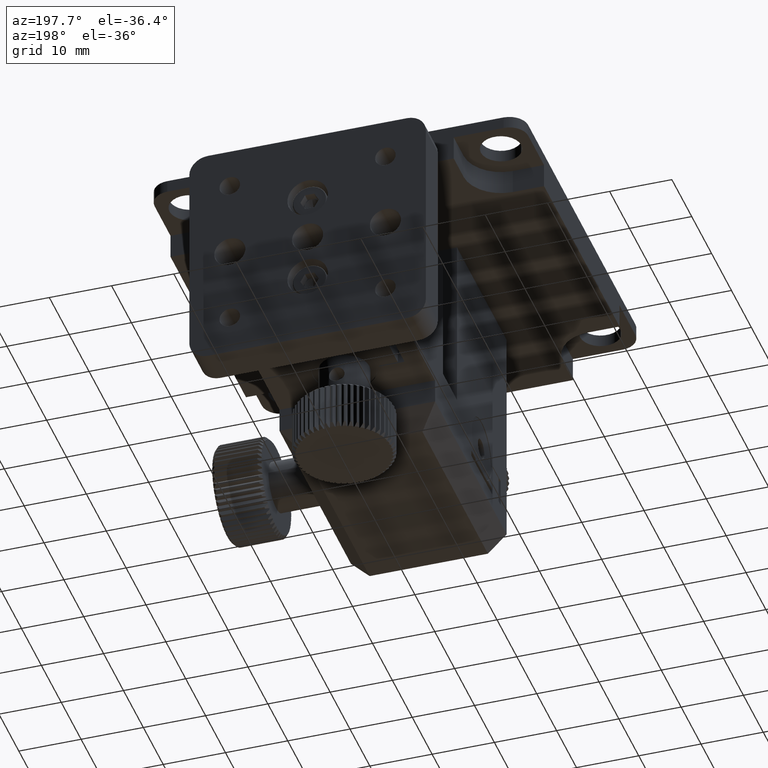
[diagram: clean part render]
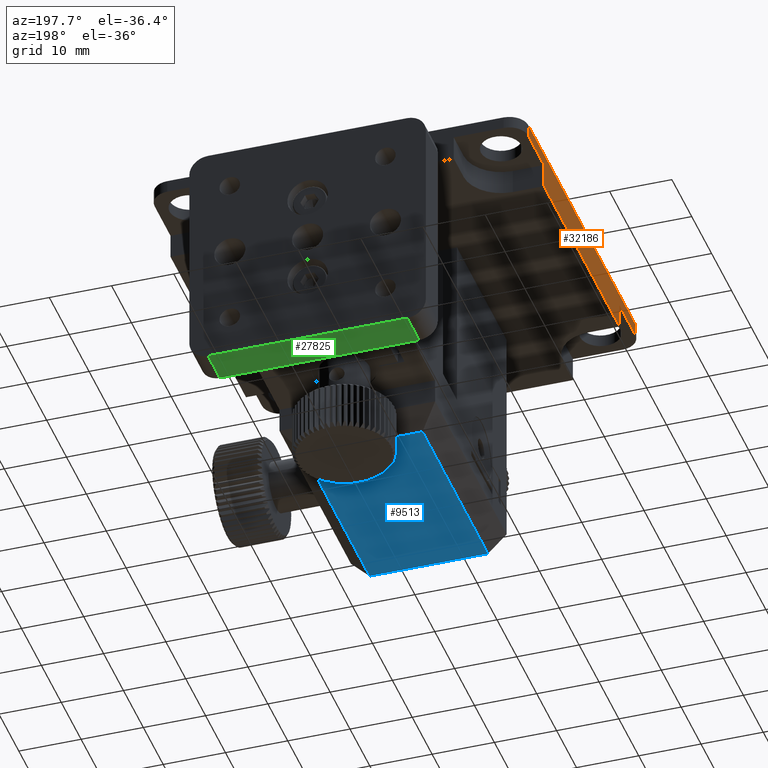
[diagram: same view with three faces highlighted in distinct colors, each labeled with its STEP entity id]
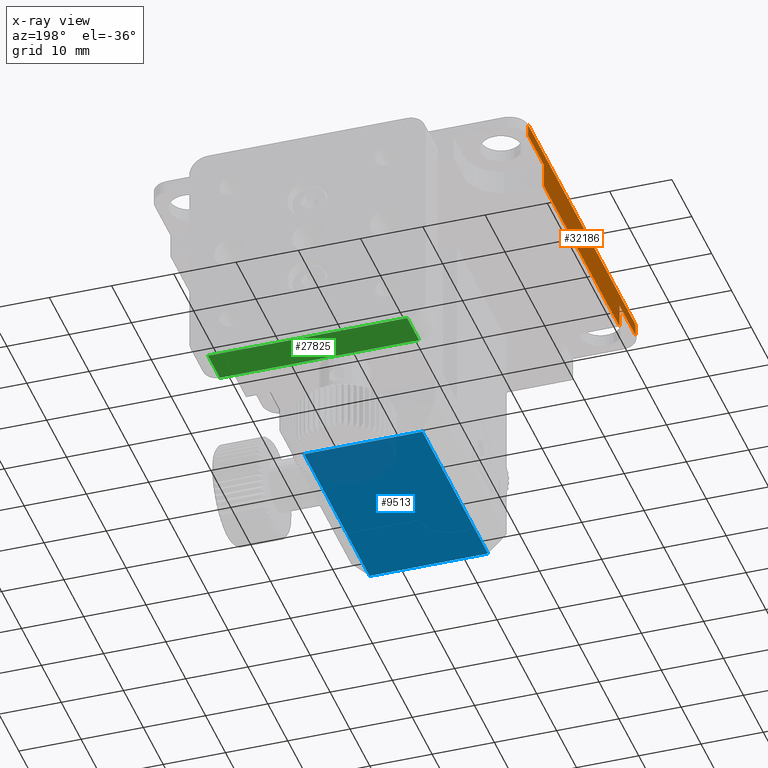
[diagram: x-ray of the same camera — body ghosted, the three highlighted faces saturated]
A machine part, auxiliary view with three faces highlighted in distinct colors.
The next image is the same camera in x-ray (body ghosted, the three faces saturated) — at least one of them is partly hidden behind the body in this view.
Their STEP definitions:

[orange] entity #32186 — the highlighted planar face has unit normal (1, 0, -0).
#379 = CARTESIAN_POINT ( 'NONE',  ( -29.99999999999999300, -26.99999999999999600, 6.000000000000000000 ) ) ;
#445 = ORIENTED_EDGE ( 'NONE', *, *, #9454, .T. ) ;
#807 = EDGE_CURVE ( 'NONE', #19068, #37769, #27990, .T. ) ;
#1831 = CARTESIAN_POINT ( 'NONE',  ( -29.99999999999999300, -26.99999999999999600, 6.000000000000000000 ) ) ;
#3174 = DIRECTION ( 'NONE',  ( 0.0000000000000000000, 0.0000000000000000000, 1.000000000000000000 ) ) ;
#3312 = CARTESIAN_POINT ( 'NONE',  ( -29.99999999999999300, -26.99999999999999600, 4.000000000000000000 ) ) ;
#3771 = LINE ( 'NONE', #38466, #34706 ) ;
#4132 = DIRECTION ( 'NONE',  ( 1.000000000000000000, 0.0000000000000000000, -0.0000000000000000000 ) ) ;
#4554 = DIRECTION ( 'NONE',  ( 0.0000000000000000000, 0.0000000000000000000, -1.000000000000000000 ) ) ;
#4748 = DIRECTION ( 'NONE',  ( 0.0000000000000000000, -1.000000000000000000, 0.0000000000000000000 ) ) ;
#5592 = VERTEX_POINT ( 'NONE', #1831 ) ;
#6147 = LINE ( 'NONE', #11073, #37062 ) ;
#6796 = VERTEX_POINT ( 'NONE', #11306 ) ;
#7320 = ORIENTED_EDGE ( 'NONE', *, *, #29095, .F. ) ;
#9332 = DIRECTION ( 'NONE',  ( 0.0000000000000000000, 0.0000000000000000000, -1.000000000000000000 ) ) ;
#9454 = EDGE_CURVE ( 'NONE', #6796, #32316, #6147, .T. ) ;
#10179 = DIRECTION ( 'NONE',  ( -0.0000000000000000000, 0.0000000000000000000, -1.000000000000000000 ) ) ;
#11073 = CARTESIAN_POINT ( 'NONE',  ( -29.99999999999999300, -19.00000000000000400, 6.000000000000000000 ) ) ;
#11306 = CARTESIAN_POINT ( 'NONE',  ( -29.99999999999999300, -19.00000000000000400, 0.0000000000000000000 ) ) ;
#11623 = VECTOR ( 'NONE', #9332, 1000.000000000000000 ) ;
#13367 = VECTOR ( 'NONE', #36093, 1000.000000000000000 ) ;
#13889 = CARTESIAN_POINT ( 'NONE',  ( -29.99999999999999300, 19.00000000000000400, 4.000000000000000000 ) ) ;
#14426 = CARTESIAN_POINT ( 'NONE',  ( -29.99999999999999300, 30.00000000000000000, 6.000000000000000000 ) ) ;
#14692 = DIRECTION ( 'NONE',  ( 0.0000000000000000000, -1.000000000000000000, 0.0000000000000000000 ) ) ;
#16151 = PLANE ( 'NONE',  #17881 ) ;
#17705 = CARTESIAN_POINT ( 'NONE',  ( -29.99999999999999300, 27.00000000000000000, 6.000000000000000000 ) ) ;
#17881 = AXIS2_PLACEMENT_3D ( 'NONE', #36978, #4132, #10179 ) ;
#18445 = FACE_OUTER_BOUND ( 'NONE', #34953, .T. ) ;
#18528 = LINE ( 'NONE', #379, #13367 ) ;
#19068 = VERTEX_POINT ( 'NONE', #13889 ) ;
#19098 = VECTOR ( 'NONE', #14692, 1000.000000000000000 ) ;
#21237 = VERTEX_POINT ( 'NONE', #3312 ) ;
#21597 = VECTOR ( 'NONE', #4748, 1000.000000000000000 ) ;
#22133 = VECTOR ( 'NONE', #27652, 1000.000000000000000 ) ;
#23153 = CARTESIAN_POINT ( 'NONE',  ( -29.99999999999999300, 30.00000000000000000, 4.000000000000000000 ) ) ;
#24010 = ORIENTED_EDGE ( 'NONE', *, *, #807, .T. ) ;
#24038 = ORIENTED_EDGE ( 'NONE', *, *, #36609, .T. ) ;
#24839 = EDGE_CURVE ( 'NONE', #36696, #32388, #28013, .T. ) ;
#25405 = CARTESIAN_POINT ( 'NONE',  ( -29.99999999999999300, -19.00000000000000400, 4.000000000000000000 ) ) ;
#26229 = DIRECTION ( 'NONE',  ( 0.0000000000000000000, -1.000000000000000000, 0.0000000000000000000 ) ) ;
#26504 = ORIENTED_EDGE ( 'NONE', *, *, #37201, .T. ) ;
#27052 = CARTESIAN_POINT ( 'NONE',  ( -29.99999999999999300, 27.00000000000000000, 6.000000000000000000 ) ) ;
#27652 = DIRECTION ( 'NONE',  ( 0.0000000000000000000, -1.000000000000000000, 0.0000000000000000000 ) ) ;
#27990 = LINE ( 'NONE', #31299, #36848 ) ;
#28013 = LINE ( 'NONE', #27052, #11623 ) ;
#29095 = EDGE_CURVE ( 'NONE', #36696, #5592, #38686, .T. ) ;
#30261 = EDGE_CURVE ( 'NONE', #21237, #5592, #18528, .T. ) ;
#31299 = CARTESIAN_POINT ( 'NONE',  ( -29.99999999999999300, 19.00000000000000400, 6.000000000000000000 ) ) ;
#32186 = ADVANCED_FACE ( 'NONE', ( #18445 ), #16151, .F. ) ;
#32316 = VERTEX_POINT ( 'NONE', #25405 ) ;
#32388 = VERTEX_POINT ( 'NONE', #32423 ) ;
#32423 = CARTESIAN_POINT ( 'NONE',  ( -29.99999999999999300, 27.00000000000000000, 4.000000000000000000 ) ) ;
#34303 = ORIENTED_EDGE ( 'NONE', *, *, #30261, .T. ) ;
#34706 = VECTOR ( 'NONE', #26229, 1000.000000000000000 ) ;
#34806 = ORIENTED_EDGE ( 'NONE', *, *, #24839, .T. ) ;
#34953 = EDGE_LOOP ( 'NONE', ( #35219, #445, #26504, #34303, #7320, #34806, #24038, #24010 ) ) ;
#35219 = ORIENTED_EDGE ( 'NONE', *, *, #36332, .T. ) ;
#35538 = LINE ( 'NONE', #23153, #21597 ) ;
#36093 = DIRECTION ( 'NONE',  ( -0.0000000000000000000, -0.0000000000000000000, 1.000000000000000000 ) ) ;
#36332 = EDGE_CURVE ( 'NONE', #37769, #6796, #3771, .T. ) ;
#36481 = CARTESIAN_POINT ( 'NONE',  ( -29.99999999999999300, 30.00000000000000000, 4.000000000000000000 ) ) ;
#36609 = EDGE_CURVE ( 'NONE', #32388, #19068, #37933, .T. ) ;
#36696 = VERTEX_POINT ( 'NONE', #17705 ) ;
#36848 = VECTOR ( 'NONE', #4554, 1000.000000000000000 ) ;
#36978 = CARTESIAN_POINT ( 'NONE',  ( -29.99999999999999300, 30.00000000000000000, 6.000000000000000000 ) ) ;
#37062 = VECTOR ( 'NONE', #3174, 1000.000000000000000 ) ;
#37201 = EDGE_CURVE ( 'NONE', #32316, #21237, #35538, .T. ) ;
#37769 = VERTEX_POINT ( 'NONE', #37923 ) ;
#37923 = CARTESIAN_POINT ( 'NONE',  ( -29.99999999999999300, 19.00000000000000400, 0.0000000000000000000 ) ) ;
#37933 = LINE ( 'NONE', #36481, #22133 ) ;
#38466 = CARTESIAN_POINT ( 'NONE',  ( -29.99999999999999300, 30.00000000000000000, 0.0000000000000000000 ) ) ;
#38686 = LINE ( 'NONE', #14426, #19098 ) ;

[blue] entity #9513 — the highlighted planar face has unit normal (0, 0, 1).
#555 = EDGE_CURVE ( 'NONE', #31633, #36351, #31297, .T. ) ;
#1753 = DIRECTION ( 'NONE',  ( -5.156634238777514400E-016, 1.000000000000000000, -9.868649107779197100E-017 ) ) ;
#4577 = LINE ( 'NONE', #19788, #18707 ) ;
#4717 = CARTESIAN_POINT ( 'NONE',  ( -9.499999999999984000, -17.00000000000000700, -39.99999999999999300 ) ) ;
#8506 = VECTOR ( 'NONE', #30902, 1000.000000000000000 ) ;
#8816 = DIRECTION ( 'NONE',  ( 2.369221262660862300E-016, 9.868649107779209400E-017, 1.000000000000000000 ) ) ;
#8927 = FACE_OUTER_BOUND ( 'NONE', #9343, .T. ) ;
#9174 = CARTESIAN_POINT ( 'NONE',  ( -9.499999999999996400, 15.99999999999997900, -39.99999999999999300 ) ) ;
#9343 = EDGE_LOOP ( 'NONE', ( #36664, #19542, #11219, #20544 ) ) ;
#9513 = ADVANCED_FACE ( 'NONE', ( #8927 ), #23949, .F. ) ;
#11164 = DIRECTION ( 'NONE',  ( 5.156634238777514400E-016, -1.000000000000000000, 9.868649107779197100E-017 ) ) ;
#11219 = ORIENTED_EDGE ( 'NONE', *, *, #18089, .T. ) ;
#11675 = CARTESIAN_POINT ( 'NONE',  ( 9.500000000000000000, -17.00000000000000000, -40.00000000000000700 ) ) ;
#12121 = DIRECTION ( 'NONE',  ( 5.156634238777514400E-016, -1.000000000000000000, 9.868649107779197100E-017 ) ) ;
#12453 = VERTEX_POINT ( 'NONE', #4717 ) ;
#12951 = CARTESIAN_POINT ( 'NONE',  ( 12.50000000000000900, -17.00000000000000000, -40.00000000000000700 ) ) ;
#13245 = EDGE_CURVE ( 'NONE', #12453, #37477, #4577, .T. ) ;
#15740 = VECTOR ( 'NONE', #15900, 1000.000000000000000 ) ;
#15900 = DIRECTION ( 'NONE',  ( -1.000000000000000000, -2.730459083833986000E-016, 2.306187572873299700E-017 ) ) ;
#16141 = LINE ( 'NONE', #27644, #8506 ) ;
#18089 = EDGE_CURVE ( 'NONE', #37477, #31633, #16141, .T. ) ;
#18707 = VECTOR ( 'NONE', #1753, 1000.000000000000000 ) ;
#19059 = CARTESIAN_POINT ( 'NONE',  ( 9.499999999999985800, 15.99999999999998600, -39.99999999999999300 ) ) ;
#19542 = ORIENTED_EDGE ( 'NONE', *, *, #13245, .T. ) ;
#19788 = CARTESIAN_POINT ( 'NONE',  ( -9.499999999999984000, -17.00000000000000700, -39.99999999999999300 ) ) ;
#20544 = ORIENTED_EDGE ( 'NONE', *, *, #555, .T. ) ;
#20692 = EDGE_CURVE ( 'NONE', #36351, #12453, #34809, .T. ) ;
#23626 = AXIS2_PLACEMENT_3D ( 'NONE', #26799, #8816, #12121 ) ;
#23949 = PLANE ( 'NONE',  #23626 ) ;
#26799 = CARTESIAN_POINT ( 'NONE',  ( 12.50000000000000900, -17.00000000000000000, -40.00000000000000700 ) ) ;
#27644 = CARTESIAN_POINT ( 'NONE',  ( 12.49999999999999500, 16.00000000000002500, -39.99999999999999300 ) ) ;
#30902 = DIRECTION ( 'NONE',  ( 1.000000000000000000, 2.730459083833986000E-016, -2.306187572873299700E-017 ) ) ;
#31297 = LINE ( 'NONE', #32256, #38262 ) ;
#31633 = VERTEX_POINT ( 'NONE', #19059 ) ;
#32256 = CARTESIAN_POINT ( 'NONE',  ( 9.500000000000000000, -17.00000000000000000, -40.00000000000000700 ) ) ;
#34809 = LINE ( 'NONE', #12951, #15740 ) ;
#36351 = VERTEX_POINT ( 'NONE', #11675 ) ;
#36664 = ORIENTED_EDGE ( 'NONE', *, *, #20692, .T. ) ;
#37477 = VERTEX_POINT ( 'NONE', #9174 ) ;
#38262 = VECTOR ( 'NONE', #11164, 1000.000000000000000 ) ;

[green] entity #27825 — the highlighted planar face has unit normal (-0, 0, -1).
#802 = VERTEX_POINT ( 'NONE', #4169 ) ;
#1640 = AXIS2_PLACEMENT_3D ( 'NONE', #35113, #34988, #8380 ) ;
#1838 = VERTEX_POINT ( 'NONE', #28710 ) ;
#2102 = DIRECTION ( 'NONE',  ( -1.000000000000000000, -7.003393642187967400E-016, 3.226585665316854800E-016 ) ) ;
#2384 = PLANE ( 'NONE',  #1640 ) ;
#4169 = CARTESIAN_POINT ( 'NONE',  ( 16.00000000000011000, 38.00000000000000700, -39.50000000000014900 ) ) ;
#5822 = CARTESIAN_POINT ( 'NONE',  ( 16.00000000000011000, 38.00000000000000700, -39.50000000000014900 ) ) ;
#6078 = DIRECTION ( 'NONE',  ( -7.003393642187964400E-016, 1.000000000000000000, 5.895652084814958200E-017 ) ) ;
#6478 = ORIENTED_EDGE ( 'NONE', *, *, #28861, .F. ) ;
#8237 = EDGE_CURVE ( 'NONE', #21090, #1838, #17113, .T. ) ;
#8380 = DIRECTION ( 'NONE',  ( -1.000000000000000000, -7.003393642187967400E-016, 3.226585665316855300E-016 ) ) ;
#9042 = VECTOR ( 'NONE', #25665, 1000.000000000000000 ) ;
#12842 = LINE ( 'NONE', #5822, #35754 ) ;
#17113 = LINE ( 'NONE', #25158, #9042 ) ;
#17807 = EDGE_CURVE ( 'NONE', #802, #21090, #26414, .T. ) ;
#18265 = FACE_OUTER_BOUND ( 'NONE', #27030, .T. ) ;
#18605 = ORIENTED_EDGE ( 'NONE', *, *, #8237, .T. ) ;
#19607 = VECTOR ( 'NONE', #30897, 1000.000000000000000 ) ;
#20145 = CARTESIAN_POINT ( 'NONE',  ( 16.00000000000011000, 38.00000000000000700, -39.50000000000014900 ) ) ;
#20463 = CARTESIAN_POINT ( 'NONE',  ( -16.00000000000008900, 37.99999999999999300, -39.50000000000007800 ) ) ;
#21085 = ORIENTED_EDGE ( 'NONE', *, *, #17807, .T. ) ;
#21090 = VERTEX_POINT ( 'NONE', #20463 ) ;
#21860 = VERTEX_POINT ( 'NONE', #35989 ) ;
#22455 = ORIENTED_EDGE ( 'NONE', *, *, #30749, .F. ) ;
#23800 = LINE ( 'NONE', #28008, #19607 ) ;
#25158 = CARTESIAN_POINT ( 'NONE',  ( -16.00000000000008900, 37.99999999999999300, -39.50000000000007800 ) ) ;
#25665 = DIRECTION ( 'NONE',  ( -7.003393642187964400E-016, 1.000000000000000000, 5.895652084814958200E-017 ) ) ;
#26414 = LINE ( 'NONE', #20145, #37581 ) ;
#27030 = EDGE_LOOP ( 'NONE', ( #6478, #22455, #21085, #18605 ) ) ;
#27825 = ADVANCED_FACE ( 'NONE', ( #18265 ), #2384, .T. ) ;
#28008 = CARTESIAN_POINT ( 'NONE',  ( 16.00000000000010700, 44.00000000000001400, -39.50000000000007800 ) ) ;
#28710 = CARTESIAN_POINT ( 'NONE',  ( -16.00000000000009200, 44.00000000000005700, -39.50000000000007800 ) ) ;
#28861 = EDGE_CURVE ( 'NONE', #21860, #1838, #23800, .T. ) ;
#30749 = EDGE_CURVE ( 'NONE', #802, #21860, #12842, .T. ) ;
#30897 = DIRECTION ( 'NONE',  ( -1.000000000000000000, -7.003393642187967400E-016, 3.226585665316854800E-016 ) ) ;
#34988 = DIRECTION ( 'NONE',  ( -3.226585665316855800E-016, 5.895652084814921200E-017, -1.000000000000000000 ) ) ;
#35113 = CARTESIAN_POINT ( 'NONE',  ( 16.00000000000011000, 38.00000000000000700, -39.50000000000014900 ) ) ;
#35754 = VECTOR ( 'NONE', #6078, 1000.000000000000000 ) ;
#35989 = CARTESIAN_POINT ( 'NONE',  ( 16.00000000000010700, 44.00000000000001400, -39.50000000000007800 ) ) ;
#37581 = VECTOR ( 'NONE', #2102, 1000.000000000000000 ) ;